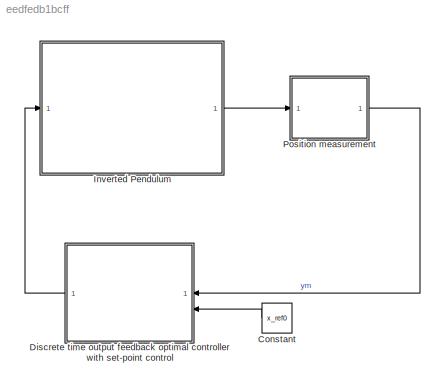
MODEL slx_eedfedb1bcff
KIND model
CONFIG AbsTol = auto
CONFIG EnableMultiTasking = off
CONFIG FixedStep = STEP_SIZE
CONFIG MaxStep = auto
CONFIG MinStep = auto
CONFIG RelTol = 1e-3
CONFIG SampleTimeConstraint = Unconstrained
CONFIG SolverName = ode4
CONFIG StartTime = 0.0
CONFIG StopTime = SIM_TIME
BLOCK [Constant] Constant
  SampleTime = Ts
  Value = x_ref0
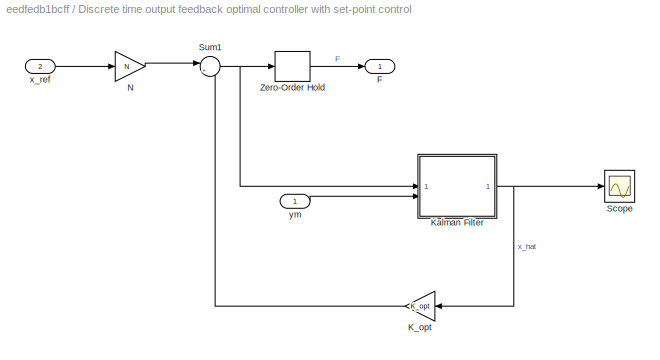
BLOCK [SubSystem] Discrete time output feedback optimal controller with set-point control
BLOCK [Outport] Discrete time output feedback optimal controller with set-point control/F
BLOCK [Gain] Discrete time output feedback optimal controller with set-point control/K_opt
  Gain = K_opt
  Multiplication = Matrix(K*u) (u vector)
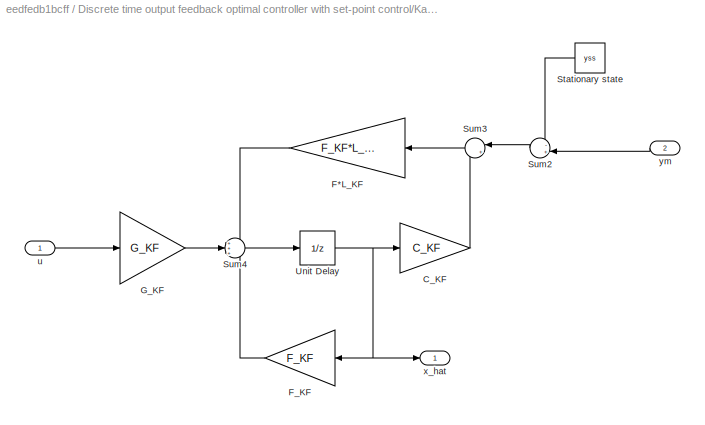
BLOCK [SubSystem] Discrete time output feedback optimal controller with set-point control/Kalman Filter
BLOCK [Gain] Discrete time output feedback optimal controller with set-point control/Kalman Filter/C_KF
  Gain = C_KF
  Multiplication = Matrix(K*u) (u vector)
BLOCK [Gain] Discrete time output feedback optimal controller with set-point control/Kalman Filter/F*L_KF
  Gain = F_KF*L_KF
  Multiplication = Matrix(K*u) (u vector)
BLOCK [Gain] Discrete time output feedback optimal controller with set-point control/Kalman Filter/F_KF
  Gain = F_KF
  Multiplication = Matrix(K*u) (u vector)
BLOCK [Gain] Discrete time output feedback optimal controller with set-point control/Kalman Filter/G_KF
  Gain = G_KF
  Multiplication = Matrix(K*u) (u vector)
BLOCK [Constant] Discrete time output feedback optimal controller with set-point control/Kalman Filter/Stationary state
  Value = yss
BLOCK [Sum] Discrete time output feedback optimal controller with set-point control/Kalman Filter/Sum2
  Inputs = -+|
BLOCK [Sum] Discrete time output feedback optimal controller with set-point control/Kalman Filter/Sum3
  Inputs = |+-
BLOCK [Sum] Discrete time output feedback optimal controller with set-point control/Kalman Filter/Sum4
  Inputs = +++
BLOCK [UnitDelay] Discrete time output feedback optimal controller with set-point control/Kalman Filter/Unit Delay
  HasFrameUpgradeWarning = on
  InitialCondition = x0_hat
  SampleTime = Ts
BLOCK [Inport] Discrete time output feedback optimal controller with set-point control/Kalman Filter/u
BLOCK [Outport] Discrete time output feedback optimal controller with set-point control/Kalman Filter/x_hat
BLOCK [Inport] Discrete time output feedback optimal controller with set-point control/Kalman Filter/ym
  Port = 2
BLOCK [Gain] Discrete time output feedback optimal controller with set-point control/N
  Gain = N
BLOCK [Scope] Discrete time output feedback optimal controller with set-point control/Scope
  Floating = off
  NumInputPorts = 1
  ScopeSpecificationString = Simulink.scopes.TimeScopeBlockCfg('CurrentConfiguration', extmgr.ConfigurationSet(extmgr.Configuration('Core','General UI',true),extmgr.Configuration('Core','Source UI',true),extmgr.Configuration('Sources','WiredSimulink',true,'DataLoggingVariableName','ScopeData1'),extmgr.Configuration('Visuals','Time Domain',true,'SerializedDisplays',{struct('MinYLimReal','-33.95333','MaxYLimReal','39.90733','YL...<+1421ch>
BLOCK [Sum] Discrete time output feedback optimal controller with set-point control/Sum1
  Inputs = |+-
BLOCK [ZeroOrderHold] Discrete time output feedback optimal controller with set-point control/Zero-Order Hold
  SampleTime = Ts
BLOCK [Inport] Discrete time output feedback optimal controller with set-point control/x_ref
  Port = 2
BLOCK [Inport] Discrete time output feedback optimal controller with set-point control/ym
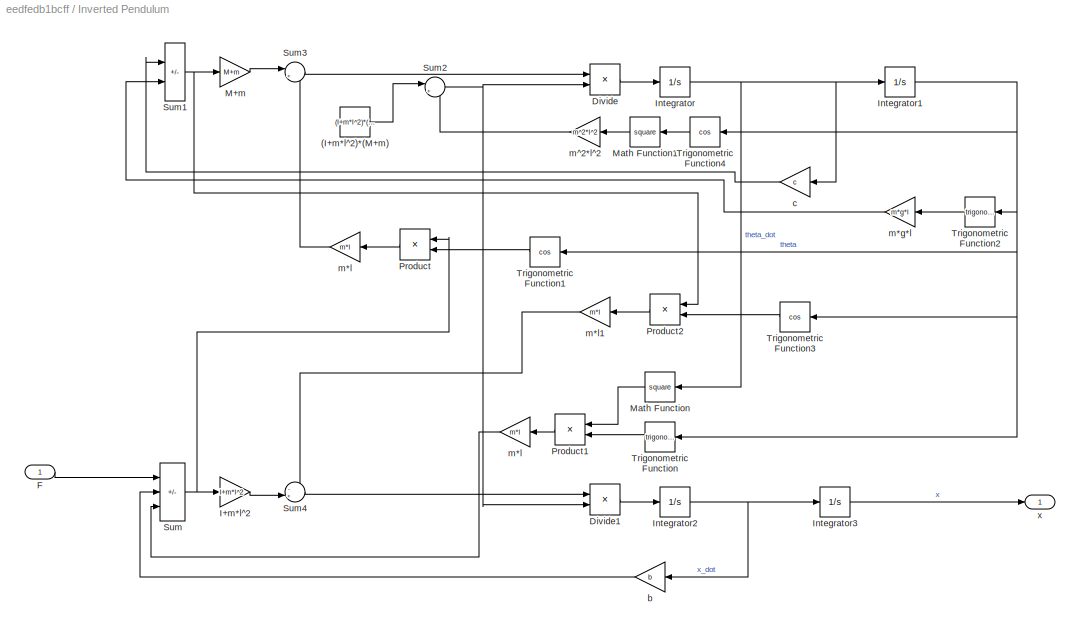
BLOCK [SubSystem] Inverted Pendulum
BLOCK [Constant] Inverted Pendulum/(I+m*l^2)*(M+m)
  Value = (I+m*l^2)*(M+m)
BLOCK [Product] Inverted Pendulum/Divide
  Inputs = */
BLOCK [Product] Inverted Pendulum/Divide1
  Inputs = */
BLOCK [Inport] Inverted Pendulum/F
BLOCK [Gain] Inverted Pendulum/I+m*l^2
  Gain = I+m*l^2
BLOCK [Integrator] Inverted Pendulum/Integrator
  ContinuousStateAttributes = 'pendulum.angular.velocity'
  InitialCondition = theta_dot0
  Priority = 1
BLOCK [Integrator] Inverted Pendulum/Integrator1
  ContinuousStateAttributes = 'pendulum.angular.position'
  InitialCondition = theta0
  LowerSaturationLimit = -pi
  Priority = 2
  UpperSaturationLimit = pi
BLOCK [Integrator] Inverted Pendulum/Integrator2
  ContinuousStateAttributes = 'trolley.horizontal.velocity'
  InitialCondition = x_dot0
  Priority = 3
BLOCK [Integrator] Inverted Pendulum/Integrator3
  ContinuousStateAttributes = 'trolley.horizontal.position'
  InitialCondition = x0
  Priority = 4
BLOCK [Gain] Inverted Pendulum/M+m
  Gain = M+m
BLOCK [Math] Inverted Pendulum/Math Function
  Operator = square
BLOCK [Math] Inverted Pendulum/Math Function1
  Operator = square
BLOCK [Product] Inverted Pendulum/Product
BLOCK [Product] Inverted Pendulum/Product1
BLOCK [Product] Inverted Pendulum/Product2
BLOCK [Sum] Inverted Pendulum/Sum
  IconShape = rectangular
  Inputs = +-+
BLOCK [Sum] Inverted Pendulum/Sum1
  IconShape = rectangular
  Inputs = --
BLOCK [Sum] Inverted Pendulum/Sum2
  Inputs = |+-
BLOCK [Sum] Inverted Pendulum/Sum3
  Inputs = |+-
BLOCK [Sum] Inverted Pendulum/Sum4
  Inputs = -+|
BLOCK [Trigonometry] Inverted Pendulum/Trigonometric Function
BLOCK [Trigonometry] Inverted Pendulum/Trigonometric Function1
  Operator = cos
BLOCK [Trigonometry] Inverted Pendulum/Trigonometric Function2
BLOCK [Trigonometry] Inverted Pendulum/Trigonometric Function3
  Operator = cos
BLOCK [Trigonometry] Inverted Pendulum/Trigonometric Function4
  Operator = cos
BLOCK [Gain] Inverted Pendulum/b
  Gain = b
BLOCK [Gain] Inverted Pendulum/c
  Gain = c
BLOCK [Gain] Inverted Pendulum/m*g*l
  Gain = m*g*l
BLOCK [Gain] Inverted Pendulum/m*l
  Gain = m*l
BLOCK [Gain] Inverted Pendulum/m*l 
  Gain = m*l
BLOCK [Gain] Inverted Pendulum/m*l1
  Gain = m*l
BLOCK [Gain] Inverted Pendulum/m^2*l^2
  Gain = m^2*l^2
BLOCK [Outport] Inverted Pendulum/x
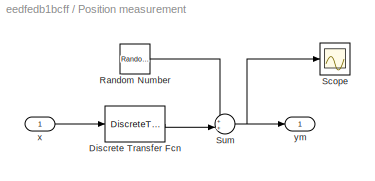
BLOCK [SubSystem] Position measurement
BLOCK [DiscreteTransferFcn] Position measurement/Discrete Transfer Fcn
  Denominator = [1]
  InputPortMap = u0
  SampleTime = Ts
BLOCK [RandomNumber] Position measurement/Random Number
  SampleTime = Ts
  Seed = [14973]
  Variance = R
BLOCK [Scope] Position measurement/Scope
  Floating = off
  NumInputPorts = 1
  ScopeSpecificationString = Simulink.scopes.TimeScopeBlockCfg('CurrentConfiguration', extmgr.ConfigurationSet(extmgr.Configuration('Core','General UI',true),extmgr.Configuration('Core','Source UI',true),extmgr.Configuration('Sources','WiredSimulink',true,'DataLoggingVariableName','ScopeData2'),extmgr.Configuration('Visuals','Time Domain',true,'SerializedDisplays',{struct('MinYLimReal','-0.16147','MaxYLimReal','0.18327','YLab...<+1408ch>
BLOCK [Sum] Position measurement/Sum
  Inputs = ++|
BLOCK [Inport] Position measurement/x
BLOCK [Outport] Position measurement/ym
LINE Constant:1 -> Discrete time output feedback optimal controller with set-point control:2
LINE Discrete time output feedback optimal controller with set-point control/K_opt:1 -> Discrete time output feedback optimal controller with set-point control/Sum1:2
LINE Discrete time output feedback optimal controller with set-point control/Kalman Filter/C_KF:1 -> Discrete time output feedback optimal controller with set-point control/Kalman Filter/Sum3:2
LINE Discrete time output feedback optimal controller with set-point control/Kalman Filter/F*L_KF:1 -> Discrete time output feedback optimal controller with set-point control/Kalman Filter/Sum4:1
LINE Discrete time output feedback optimal controller with set-point control/Kalman Filter/F_KF:1 -> Discrete time output feedback optimal controller with set-point control/Kalman Filter/Sum4:3
LINE Discrete time output feedback optimal controller with set-point control/Kalman Filter/G_KF:1 -> Discrete time output feedback optimal controller with set-point control/Kalman Filter/Sum4:2
LINE Discrete time output feedback optimal controller with set-point control/Kalman Filter/Stationary state:1 -> Discrete time output feedback optimal controller with set-point control/Kalman Filter/Sum2:1
LINE Discrete time output feedback optimal controller with set-point control/Kalman Filter/Sum2:1 -> Discrete time output feedback optimal controller with set-point control/Kalman Filter/Sum3:1
LINE Discrete time output feedback optimal controller with set-point control/Kalman Filter/Sum3:1 -> Discrete time output feedback optimal controller with set-point control/Kalman Filter/F*L_KF:1
LINE Discrete time output feedback optimal controller with set-point control/Kalman Filter/Sum4:1 -> Discrete time output feedback optimal controller with set-point control/Kalman Filter/Unit Delay:1
NET Discrete time output feedback optimal controller with set-point control/Kalman Filter/Unit Delay:1 -> Discrete time output feedback optimal controller with set-point control/Kalman Filter/C_KF:1, Discrete time output feedback optimal controller with set-point control/Kalman Filter/F_KF:1, Discrete time output feedback optimal controller with set-point control/Kalman Filter/x_hat:1
LINE Discrete time output feedback optimal controller with set-point control/Kalman Filter/u:1 -> Discrete time output feedback optimal controller with set-point control/Kalman Filter/G_KF:1
LINE Discrete time output feedback optimal controller with set-point control/Kalman Filter/ym:1 -> Discrete time output feedback optimal controller with set-point control/Kalman Filter/Sum2:2
NET Discrete time output feedback optimal controller with set-point control/Kalman Filter:1 -> Discrete time output feedback optimal controller with set-point control/K_opt:1, Discrete time output feedback optimal controller with set-point control/Scope:1
LINE Discrete time output feedback optimal controller with set-point control/N:1 -> Discrete time output feedback optimal controller with set-point control/Sum1:1
NET Discrete time output feedback optimal controller with set-point control/Sum1:1 -> Discrete time output feedback optimal controller with set-point control/Kalman Filter:1, Discrete time output feedback optimal controller with set-point control/Zero-Order Hold:1
LINE Discrete time output feedback optimal controller with set-point control/Zero-Order Hold:1 -> Discrete time output feedback optimal controller with set-point control/F:1
LINE Discrete time output feedback optimal controller with set-point control/x_ref:1 -> Discrete time output feedback optimal controller with set-point control/N:1
LINE Discrete time output feedback optimal controller with set-point control/ym:1 -> Discrete time output feedback optimal controller with set-point control/Kalman Filter:2
LINE Discrete time output feedback optimal controller with set-point control:1 -> Inverted Pendulum:1
LINE Inverted Pendulum/(I+m*l^2)*(M+m):1 -> Inverted Pendulum/Sum2:1
LINE Inverted Pendulum/Divide1:1 -> Inverted Pendulum/Integrator2:1
LINE Inverted Pendulum/Divide:1 -> Inverted Pendulum/Integrator:1
LINE Inverted Pendulum/F:1 -> Inverted Pendulum/Sum:1
LINE Inverted Pendulum/I+m*l^2:1 -> Inverted Pendulum/Sum4:2
NET Inverted Pendulum/Integrator1:1 -> Inverted Pendulum/Trigonometric Function1:1, Inverted Pendulum/Trigonometric Function2:1, Inverted Pendulum/Trigonometric Function3:1, Inverted Pendulum/Trigonometric Function4:1, Inverted Pendulum/Trigonometric Function:1
NET Inverted Pendulum/Integrator2:1 -> Inverted Pendulum/Integrator3:1, Inverted Pendulum/b:1
LINE Inverted Pendulum/Integrator3:1 -> Inverted Pendulum/x:1
NET Inverted Pendulum/Integrator:1 -> Inverted Pendulum/Integrator1:1, Inverted Pendulum/Math Function:1, Inverted Pendulum/c:1
LINE Inverted Pendulum/M+m:1 -> Inverted Pendulum/Sum3:1
LINE Inverted Pendulum/Math Function1:1 -> Inverted Pendulum/m^2*l^2:1
LINE Inverted Pendulum/Math Function:1 -> Inverted Pendulum/Product1:1
LINE Inverted Pendulum/Product1:1 -> Inverted Pendulum/m*l :1
LINE Inverted Pendulum/Product2:1 -> Inverted Pendulum/m*l1:1
LINE Inverted Pendulum/Product:1 -> Inverted Pendulum/m*l:1
NET Inverted Pendulum/Sum1:1 -> Inverted Pendulum/M+m:1, Inverted Pendulum/Product2:1
NET Inverted Pendulum/Sum2:1 -> Inverted Pendulum/Divide1:2, Inverted Pendulum/Divide:2
LINE Inverted Pendulum/Sum3:1 -> Inverted Pendulum/Divide:1
LINE Inverted Pendulum/Sum4:1 -> Inverted Pendulum/Divide1:1
NET Inverted Pendulum/Sum:1 -> Inverted Pendulum/I+m*l^2:1, Inverted Pendulum/Product:1
LINE Inverted Pendulum/Trigonometric Function1:1 -> Inverted Pendulum/Product:2
LINE Inverted Pendulum/Trigonometric Function2:1 -> Inverted Pendulum/m*g*l:1
LINE Inverted Pendulum/Trigonometric Function3:1 -> Inverted Pendulum/Product2:2
LINE Inverted Pendulum/Trigonometric Function4:1 -> Inverted Pendulum/Math Function1:1
LINE Inverted Pendulum/Trigonometric Function:1 -> Inverted Pendulum/Product1:2
LINE Inverted Pendulum/b:1 -> Inverted Pendulum/Sum:2
LINE Inverted Pendulum/c:1 -> Inverted Pendulum/Sum1:1
LINE Inverted Pendulum/m*g*l:1 -> Inverted Pendulum/Sum1:2
LINE Inverted Pendulum/m*l :1 -> Inverted Pendulum/Sum:3
LINE Inverted Pendulum/m*l1:1 -> Inverted Pendulum/Sum4:1
LINE Inverted Pendulum/m*l:1 -> Inverted Pendulum/Sum3:2
LINE Inverted Pendulum/m^2*l^2:1 -> Inverted Pendulum/Sum2:2
LINE Inverted Pendulum:1 -> Position measurement:1
LINE Position measurement/Discrete Transfer Fcn:1 -> Position measurement/Sum:2
LINE Position measurement/Random Number:1 -> Position measurement/Sum:1
NET Position measurement/Sum:1 -> Position measurement/Scope:1, Position measurement/ym:1
LINE Position measurement/x:1 -> Position measurement/Discrete Transfer Fcn:1
LINE Position measurement:1 -> Discrete time output feedback optimal controller with set-point control:1
note: NET lines group one-source signal fan-out (src -> all destinations, sorted); 1:1 wires keep LINE
